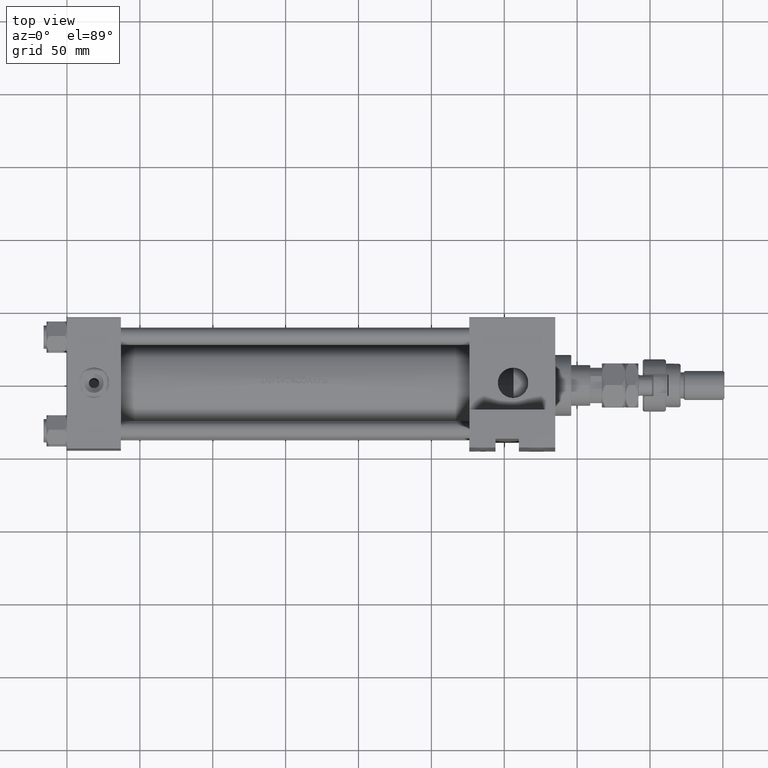
[diagram: clean part render]
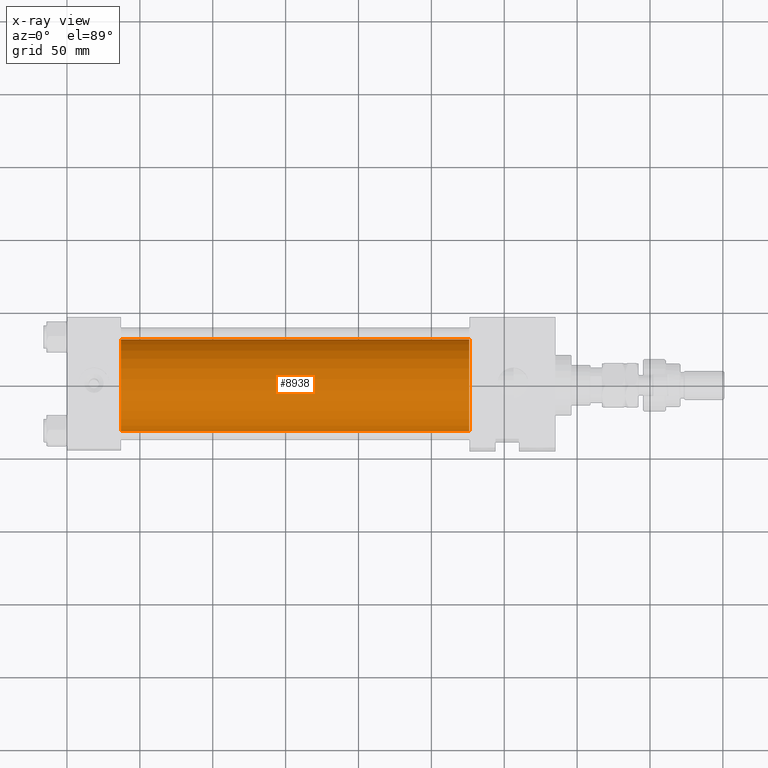
[diagram: x-ray — body ghosted, one internal face saturated and labeled with its STEP entity id]
A machine part, top view, then the same camera in x-ray: the body is ghosted and one INTERNAL B-rep face — a face not visible from any outside direction — is saturated and labeled: STEP entity #8938.
In plain terms, the highlighted cylindrical surface (partial cylindrical patch) has radius 31.5 mm, axis along (-1, -0, 0).
Its self-contained STEP definition (entity closure, byte-faithful):
#779 = CARTESIAN_POINT ( 'NONE',  ( 37.00000000000000000, 0.000000000000000000, -1.000000000000007772 ) ) ;
#2660 = EDGE_CURVE ( 'NONE', #45461, #24701, #30272, .T. ) ;
#4422 = AXIS2_PLACEMENT_3D ( 'NONE', #46530, #26862, #22611 ) ;
#6649 = VERTEX_POINT ( 'NONE', #50191 ) ;
#8498 = DIRECTION ( 'NONE',  ( 0.000000000000000000, 0.000000000000000000, -1.000000000000000000 ) ) ;
#8938 = ADVANCED_FACE ( 'NONE', ( #10656 ), #34574, .F. ) ;
#9092 = EDGE_CURVE ( 'NONE', #24701, #11820, #16298, .T. ) ;
#10083 = CARTESIAN_POINT ( 'NONE',  ( 275.9999999999999432, 0.000000000000000000, 30.49999999999999289 ) ) ;
#10656 = FACE_OUTER_BOUND ( 'NONE', #13942, .T. ) ;
#11820 = VERTEX_POINT ( 'NONE', #17299 ) ;
#11891 = DIRECTION ( 'NONE',  ( 0.000000000000000000, 0.000000000000000000, -1.000000000000000000 ) ) ;
#11996 = ORIENTED_EDGE ( 'NONE', *, *, #9092, .F. ) ;
#13942 = EDGE_LOOP ( 'NONE', ( #43842, #44270, #11996, #40763 ) ) ;
#15878 = CARTESIAN_POINT ( 'NONE',  ( 275.9999999999999432, 0.000000000000000000, -1.000000000000007772 ) ) ;
#16298 = CIRCLE ( 'NONE', #26510, 31.50000000000000000 ) ;
#17299 = CARTESIAN_POINT ( 'NONE',  ( 37.00000000000000000, 3.857637417314161900E-15, -32.50000000000000711 ) ) ;
#21386 = VECTOR ( 'NONE', #42491, 1000.000000000000000 ) ;
#22611 = DIRECTION ( 'NONE',  ( 0.000000000000000000, 0.000000000000000000, 1.000000000000000000 ) ) ;
#23641 = CARTESIAN_POINT ( 'NONE',  ( 275.9999999999999432, 0.000000000000000000, 30.49999999999999289 ) ) ;
#24701 = VERTEX_POINT ( 'NONE', #30738 ) ;
#25408 = EDGE_CURVE ( 'NONE', #6649, #11820, #35082, .T. ) ;
#26510 = AXIS2_PLACEMENT_3D ( 'NONE', #779, #28682, #8498 ) ;
#26862 = DIRECTION ( 'NONE',  ( -1.000000000000000000, -0.000000000000000000, -0.000000000000000000 ) ) ;
#28682 = DIRECTION ( 'NONE',  ( 1.000000000000000000, 0.000000000000000000, 0.000000000000000000 ) ) ;
#30272 = LINE ( 'NONE', #10083, #21386 ) ;
#30738 = CARTESIAN_POINT ( 'NONE',  ( 37.00000000000000000, 0.000000000000000000, 30.49999999999999289 ) ) ;
#32072 = DIRECTION ( 'NONE',  ( 1.000000000000000000, 0.000000000000000000, 0.000000000000000000 ) ) ;
#34574 = CYLINDRICAL_SURFACE ( 'NONE', #4422, 31.50000000000000000 ) ;
#35082 = LINE ( 'NONE', #51287, #47504 ) ;
#40763 = ORIENTED_EDGE ( 'NONE', *, *, #2660, .F. ) ;
#42295 = CIRCLE ( 'NONE', #50819, 31.50000000000000000 ) ;
#42491 = DIRECTION ( 'NONE',  ( -1.000000000000000000, -0.000000000000000000, -0.000000000000000000 ) ) ;
#43842 = ORIENTED_EDGE ( 'NONE', *, *, #46570, .T. ) ;
#44270 = ORIENTED_EDGE ( 'NONE', *, *, #25408, .T. ) ;
#45461 = VERTEX_POINT ( 'NONE', #23641 ) ;
#46530 = CARTESIAN_POINT ( 'NONE',  ( 275.9999999999999432, 0.000000000000000000, -1.000000000000007772 ) ) ;
#46570 = EDGE_CURVE ( 'NONE', #45461, #6649, #42295, .T. ) ;
#47278 = DIRECTION ( 'NONE',  ( -1.000000000000000000, -0.000000000000000000, -0.000000000000000000 ) ) ;
#47504 = VECTOR ( 'NONE', #47278, 1000.000000000000000 ) ;
#50191 = CARTESIAN_POINT ( 'NONE',  ( 275.9999999999999432, 3.857637417314161900E-15, -32.50000000000000711 ) ) ;
#50819 = AXIS2_PLACEMENT_3D ( 'NONE', #15878, #32072, #11891 ) ;
#51287 = CARTESIAN_POINT ( 'NONE',  ( 275.9999999999999432, 3.857637417314161900E-15, -32.50000000000000711 ) ) ;